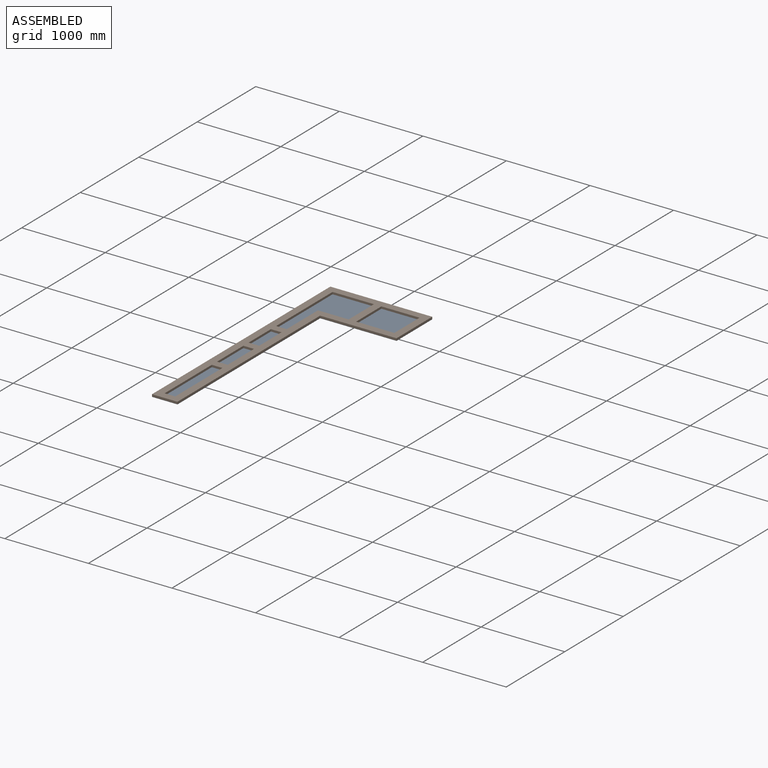
[diagram: assembled view]
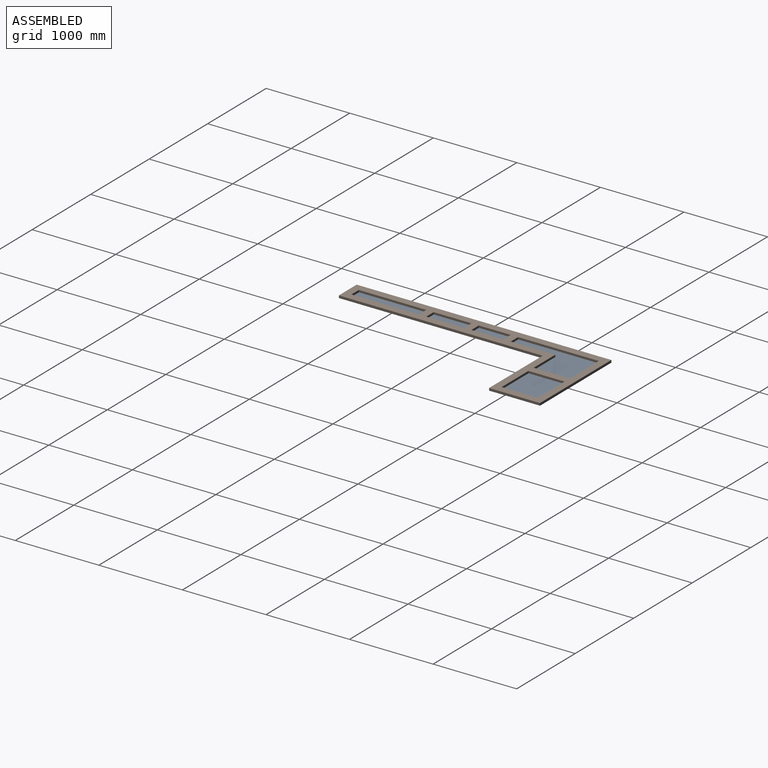
[diagram: assembled view, second angle]
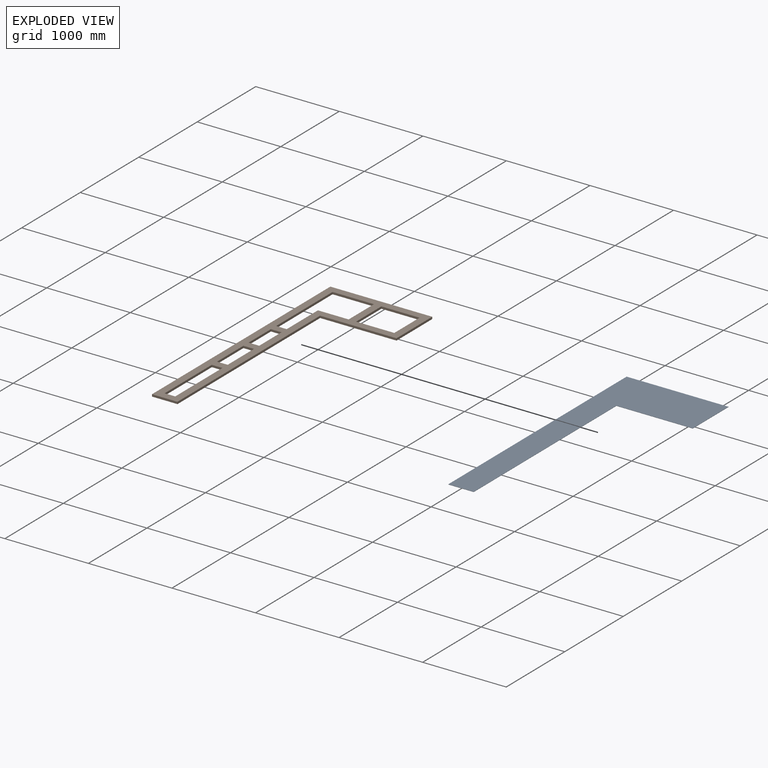
[diagram: exploded view]
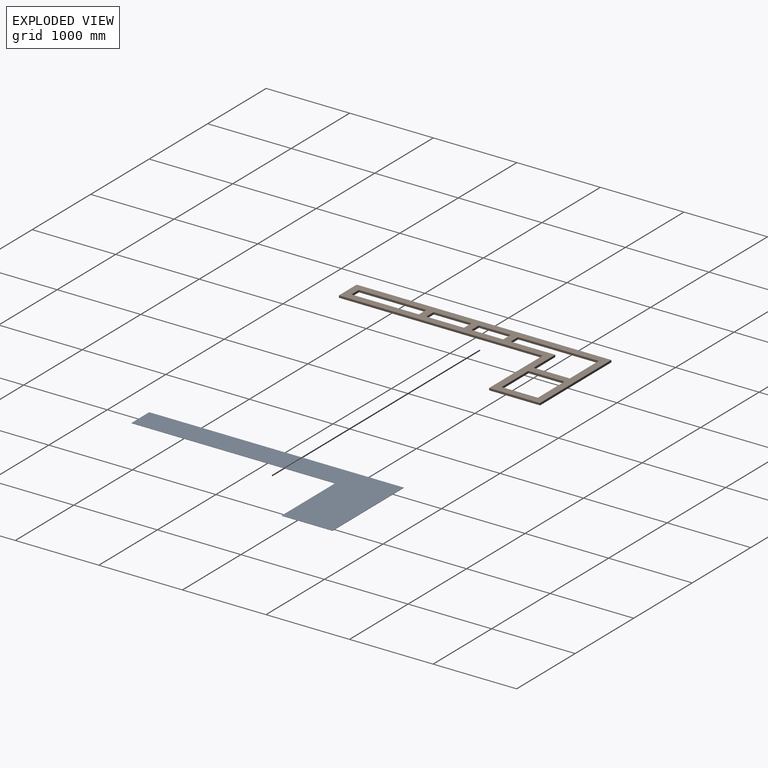
[diagram: exploded view, second angle]
ASSEMBLY  parts=2 mates=3
PART A: 8 faces, bbox 1219.2x3048x3.2 mm
  f0: plane 914.4x3.18mm, normal (0,-1,0), area 2903.2mm2, adj f1,f5,f6,f7
  f1: plane 609.6x3.18mm, normal (1,0,0), area 1935.5mm2, adj f0,f2,f6,f7
  f2: plane 1219.2x3.18mm, normal (0,1,0), area 3871mm2, adj f1,f3,f6,f7
  f3: plane 3048x3.18mm, normal (-1,0,0), area 9677.4mm2, adj f2,f4,f6,f7
  f4: plane 304.8x3.18mm, normal (0,-1,0), area 967.7mm2, adj f3,f5,f6,f7
  f5: plane 2438.4x3.18mm, normal (1,0,0), area 7741.9mm2, adj f0,f4,f6,f7
  f6: plane 3048x1219.2mm, normal (0,0,1), area 1486448.6mm2, adj f0,f1,f2,f3,f4,f5
  f7: plane 3048x1219.2mm, normal (0,0,-1), area 1486448.6mm2, adj f0,f1,f2,f3,f4,f5
PART B: 30 faces, bbox 1219.2x3048x25.4 mm
  f0: plane 127x25.4mm, normal (0,-1,0), area 3225.8mm2, adj f1,f27,f28,f29
  f1: plane 806.7x25.4mm, normal (-1,0,0), area 20490.1mm2, adj f0,f2,f28,f29
  f2: plane 127x25.4mm, normal (0,1,0), area 3225.8mm2, adj f1,f27,f28,f29
  f3: plane 3048x25.4mm, normal (-1,0,0), area 77419.2mm2, adj f4,f22,f28,f29
  f4: plane 304.8x25.4mm, normal (0,-1,0), area 7741.9mm2, adj f3,f5,f28,f29
  f5: plane 2438.4x25.4mm, normal (1,0,0), area 61935.4mm2, adj f4,f6,f28,f29
  f6: plane 914.4x25.4mm, normal (0,-1,0), area 23225.8mm2, adj f5,f7,f28,f29
  f7: plane 609.6x25.4mm, normal (1,0,0), area 15483.8mm2, adj f6,f22,f28,f29
  f8: plane 450.6x25.4mm, normal (-1,0,0), area 11445.3mm2, adj f9,f23,f28,f29
  f9: plane 127x25.4mm, normal (0,1,0), area 3225.8mm2, adj f8,f10,f28,f29
  f10: plane 450.6x25.4mm, normal (1,0,0), area 11445.3mm2, adj f9,f23,f28,f29
  f11: plane 381.48x25.4mm, normal (-1,0,0), area 9689.6mm2, adj f12,f24,f28,f29
  f12: plane 127x25.4mm, normal (0,1,0), area 3225.8mm2, adj f11,f13,f28,f29
  f13: plane 381.48x25.4mm, normal (1,0,0), area 9689.6mm2, adj f12,f24,f28,f29
  f14: plane 457.2x25.4mm, normal (0,1,0), area 11612.9mm2, adj f15,f25,f28,f29
  f15: plane 431.8x25.4mm, normal (1,0,0), area 10967.7mm2, adj f14,f16,f28,f29
  f16: plane 457.2x25.4mm, normal (0,-1,0), area 11612.9mm2, adj f15,f25,f28,f29
  f17: plane 431.8x25.4mm, normal (-1,0,0), area 10967.7mm2, adj f18,f26,f28,f29
  f18: plane 368.3x25.4mm, normal (0,1,0), area 9354.8mm2, adj f17,f19,f28,f29
  f19: plane 532.92x25.4mm, normal (-1,0,0), area 13536.1mm2, adj f18,f20,f28,f29
  f20: plane 127x25.4mm, normal (0,1,0), area 3225.8mm2, adj f19,f21,f28,f29
  f21: plane 964.72x25.4mm, normal (1,0,0), area 24503.8mm2, adj f20,f26,f28,f29
  f22: plane 1219.2x25.4mm, normal (0,1,0), area 30967.7mm2, adj f3,f7,f28,f29
  f23: plane 127x25.4mm, normal (0,-1,0), area 3225.8mm2, adj f8,f10,f28,f29
  f24: plane 127x25.4mm, normal (0,-1,0), area 3225.8mm2, adj f11,f13,f28,f29
  f25: plane 431.8x25.4mm, normal (-1,0,0), area 10967.7mm2, adj f14,f16,f28,f29
  f26: plane 495.3x25.4mm, normal (0,-1,0), area 12580.6mm2, adj f17,f21,f28,f29
  f27: plane 806.7x25.4mm, normal (1,0,0), area 20490.1mm2, adj f0,f2,f28,f29
  f28: plane 3048x1219.2mm, normal (0,0,1), area 799353.2mm2, adj f0,f1,f2,f3,f4,f5,f6,f7
  f29: plane 3048x1219.2mm, normal (0,0,-1), area 799353.2mm2, adj f0,f1,f2,f3,f4,f5,f6,f7
PLACE A t=(356.68,-565.94,567.78)mm
PLACE B t=(356.68,-565.94,570.96)mm
MATE planar A.f5 <-> B.f5  axis (1,0,0) through (661.48,653.26,569.37)mm
MATE planar B.f22 <-> A.f2  axis (0,1,0) through (966.28,2482.06,583.66)mm
MATE planar A.f6 <-> B.f29  axis (0,0,1) through (737.68,1415.26,570.96)mm
